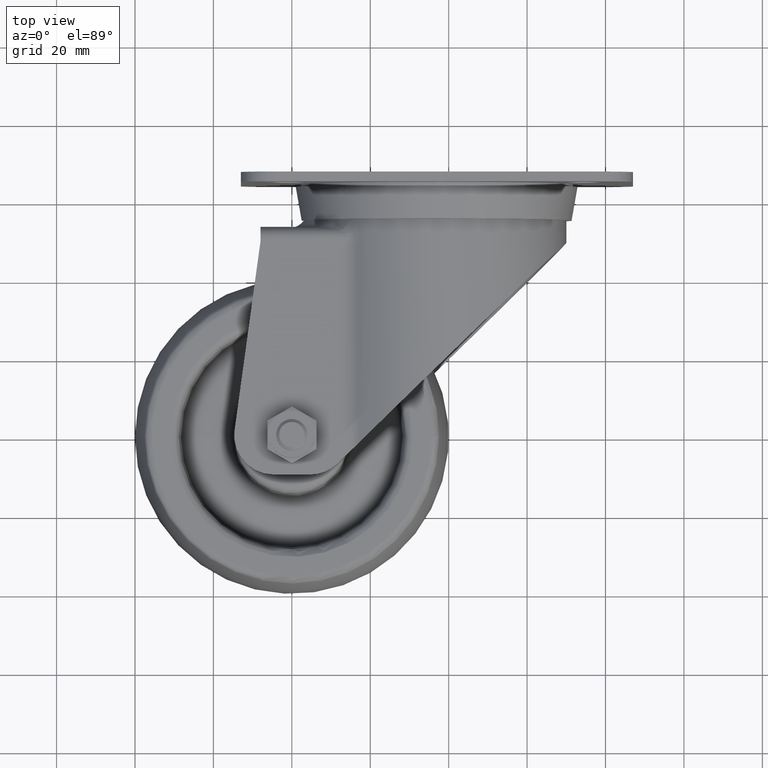
[diagram: clean part render]
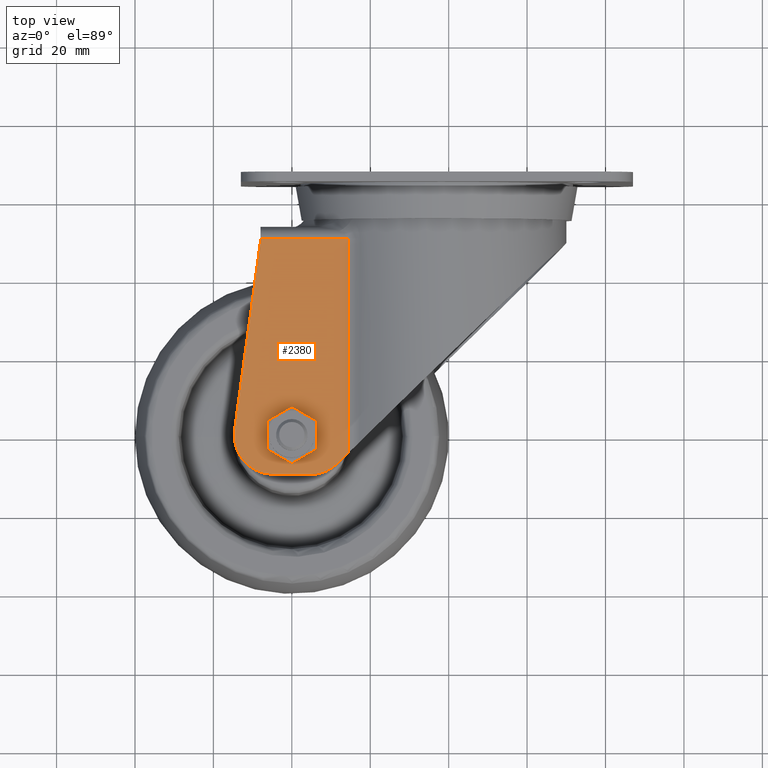
[diagram: same view with one face highlighted and labeled with its STEP entity id]
A machine part, top view. The second image highlights one B-rep face of the part: STEP entity #2380.
In plain terms, the highlighted planar face has unit normal (0, 0, 1).
Its self-contained STEP definition (entity closure, byte-faithful):
#156=FACE_BOUND('',#334,.T.);
#186=FACE_OUTER_BOUND('',#333,.T.);
#333=EDGE_LOOP('',(#1512,#1513,#1514,#1515,#1516,#1517,#1518,#1519));
#334=EDGE_LOOP('',(#1520,#1521,#1522,#1523,#1524,#1525));
#515=CIRCLE('',#2564,10.);
#516=CIRCLE('',#2565,9.99999999999999);
#678=LINE('',#3666,#806);
#679=LINE('',#3668,#807);
#680=LINE('',#3670,#808);
#681=LINE('',#3672,#809);
#682=LINE('',#3676,#810);
#683=LINE('',#3679,#811);
#684=LINE('',#3682,#812);
#685=LINE('',#3684,#813);
#686=LINE('',#3686,#814);
#687=LINE('',#3688,#815);
#688=LINE('',#3690,#816);
#689=LINE('',#3691,#817);
#806=VECTOR('',#2906,10.);
#807=VECTOR('',#2907,10.);
#808=VECTOR('',#2908,3.7);
#809=VECTOR('',#2909,48.5915630536825);
#810=VECTOR('',#2912,9.4);
#811=VECTOR('',#2915,6.11420897830519);
#812=VECTOR('',#2916,10.);
#813=VECTOR('',#2917,10.);
#814=VECTOR('',#2918,10.);
#815=VECTOR('',#2919,10.);
#816=VECTOR('',#2920,10.);
#817=VECTOR('',#2921,10.);
#946=VERTEX_POINT('',#3664);
#947=VERTEX_POINT('',#3665);
#948=VERTEX_POINT('',#3667);
#949=VERTEX_POINT('',#3669);
#950=VERTEX_POINT('',#3671);
#951=VERTEX_POINT('',#3673);
#952=VERTEX_POINT('',#3675);
#953=VERTEX_POINT('',#3677);
#954=VERTEX_POINT('',#3680);
#955=VERTEX_POINT('',#3681);
#956=VERTEX_POINT('',#3683);
#957=VERTEX_POINT('',#3685);
#958=VERTEX_POINT('',#3687);
#959=VERTEX_POINT('',#3689);
#1167=EDGE_CURVE('',#946,#947,#678,.T.);
#1168=EDGE_CURVE('',#948,#946,#679,.T.);
#1169=EDGE_CURVE('',#948,#949,#680,.T.);
#1170=EDGE_CURVE('',#949,#950,#681,.T.);
#1171=EDGE_CURVE('',#950,#951,#515,.T.);
#1172=EDGE_CURVE('',#951,#952,#682,.T.);
#1173=EDGE_CURVE('',#952,#953,#516,.T.);
#1174=EDGE_CURVE('',#953,#947,#683,.T.);
#1175=EDGE_CURVE('',#954,#955,#684,.T.);
#1176=EDGE_CURVE('',#956,#954,#685,.T.);
#1177=EDGE_CURVE('',#957,#956,#686,.T.);
#1178=EDGE_CURVE('',#958,#957,#687,.T.);
#1179=EDGE_CURVE('',#959,#958,#688,.T.);
#1180=EDGE_CURVE('',#955,#959,#689,.T.);
#1512=ORIENTED_EDGE('',*,*,#1167,.F.);
#1513=ORIENTED_EDGE('',*,*,#1168,.F.);
#1514=ORIENTED_EDGE('',*,*,#1169,.T.);
#1515=ORIENTED_EDGE('',*,*,#1170,.T.);
#1516=ORIENTED_EDGE('',*,*,#1171,.T.);
#1517=ORIENTED_EDGE('',*,*,#1172,.T.);
#1518=ORIENTED_EDGE('',*,*,#1173,.T.);
#1519=ORIENTED_EDGE('',*,*,#1174,.T.);
#1520=ORIENTED_EDGE('',*,*,#1175,.F.);
#1521=ORIENTED_EDGE('',*,*,#1176,.F.);
#1522=ORIENTED_EDGE('',*,*,#1177,.F.);
#1523=ORIENTED_EDGE('',*,*,#1178,.F.);
#1524=ORIENTED_EDGE('',*,*,#1179,.F.);
#1525=ORIENTED_EDGE('',*,*,#1180,.F.);
#2176=PLANE('',#2563);
#2380=ADVANCED_FACE('',(#186,#156),#2176,.T.);
#2563=AXIS2_PLACEMENT_3D('',#3663,#2904,#2905);
#2564=AXIS2_PLACEMENT_3D('',#3674,#2910,#2911);
#2565=AXIS2_PLACEMENT_3D('',#3678,#2913,#2914);
#2904=DIRECTION('center_axis',(0.,0.,1.));
#2905=DIRECTION('ref_axis',(0.99999997671166,-0.000215816311518736,0.));
#2906=DIRECTION('',(-0.000215816311518736,-0.99999997671166,0.));
#2907=DIRECTION('',(0.99999997671166,-0.000215816311518736,0.));
#2908=DIRECTION('',(-0.000215816311518736,-0.99999997671166,0.));
#2909=DIRECTION('',(-0.136186505130647,-0.990683216684476,0.));
#2910=DIRECTION('center_axis',(0.,0.,1.));
#2911=DIRECTION('ref_axis',(-0.000215816311518736,-0.99999997671166,0.));
#2912=DIRECTION('',(0.99999997671166,-0.000215816311518736,0.));
#2913=DIRECTION('center_axis',(0.,0.,1.));
#2914=DIRECTION('ref_axis',(0.696676950173113,-0.717384992244395,0.));
#2915=DIRECTION('',(0.717384992244397,0.69667695017311,0.));
#2916=DIRECTION('',(-0.866025403784439,-0.5,0.));
#2917=DIRECTION('',(-0.866025403784439,0.5,0.));
#2918=DIRECTION('',(2.08166817117217E-16,1.,0.));
#2919=DIRECTION('',(0.866025403784439,0.5,0.));
#2920=DIRECTION('',(0.866025403784439,-0.5,0.));
#2921=DIRECTION('',(-2.08166817117217E-16,-1.,0.));
#3663=CARTESIAN_POINT('Origin',(0.,0.,25.5));
#3664=CARTESIAN_POINT('',(14.3447797317381,50.1969053315514,25.5));
#3665=CARTESIAN_POINT('',(14.332956764793,-4.58563907687502,25.5));
#3666=CARTESIAN_POINT('',(14.3389095280648,22.9969059649942,25.5));
#3667=CARTESIAN_POINT('',(-7.98916583485504,50.2017253614175,25.5));
#3668=CARTESIAN_POINT('',(15.0108336295131,50.1967615862525,25.5));
#3669=CARTESIAN_POINT('',(-7.9893169062731,49.5017253777193,25.5));
#3670=CARTESIAN_POINT('',(-7.98851838592048,53.2017252915524,25.5));
#3671=CARTESIAN_POINT('',(-14.6068320573895,1.3628793879706,25.5));
#3672=CARTESIAN_POINT('',(-7.98931690627308,49.5017253777193,25.5));
#3673=CARTESIAN_POINT('',(-4.70215805365999,-9.99898543045246,25.5));
#3674=CARTESIAN_POINT('Origin',(-4.6999998905448,0.00101433666414161,25.5));
#3675=CARTESIAN_POINT('',(4.69784172742961,-10.0010141037807,25.5));
#3676=CARTESIAN_POINT('',(-4.70215805365999,-9.99898543045246,25.5));
#3677=CARTESIAN_POINT('',(11.666769392276,-7.1748642591081,25.5));
#3678=CARTESIAN_POINT('Origin',(4.69999989054479,-0.00101433666416204,25.5));
#3679=CARTESIAN_POINT('',(11.6667693922759,-7.17486425910805,25.5));
#3680=CARTESIAN_POINT('',(2.21440576020408E-14,7.22650086935682,25.5));
#3681=CARTESIAN_POINT('',(-6.25833333333331,3.61325043467841,25.5));
#3682=CARTESIAN_POINT('',(-1.56458333333332,6.32318826068721,25.5));
#3683=CARTESIAN_POINT('',(6.25833333333335,3.61325043467841,25.5));
#3684=CARTESIAN_POINT('',(4.69375000000001,4.51656304334801,25.5));
#3685=CARTESIAN_POINT('',(6.25833333333335,-3.61325043467841,25.5));
#3686=CARTESIAN_POINT('',(6.25833333333335,-1.80662521733921,25.5));
#3687=CARTESIAN_POINT('',(1.91354222323032E-14,-7.22650086935682,25.5));
#3688=CARTESIAN_POINT('',(1.56458333333335,-6.32318826068723,25.5));
#3689=CARTESIAN_POINT('',(-6.25833333333331,-3.61325043467841,25.5));
#3690=CARTESIAN_POINT('',(-4.69374999999999,-4.51656304334801,25.5));
#3691=CARTESIAN_POINT('',(-6.25833333333331,1.80662521733921,25.5));